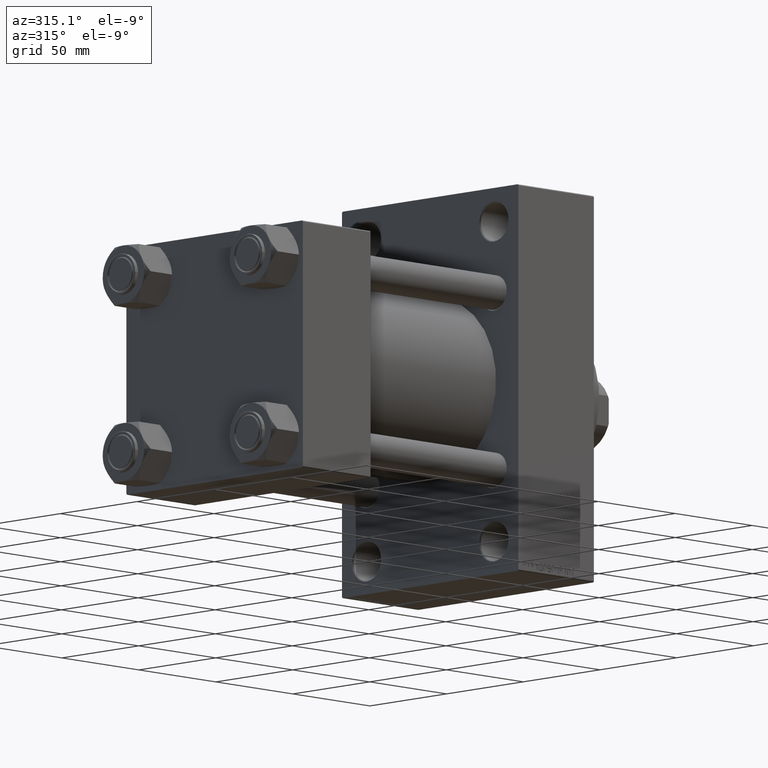
[diagram: clean part render]
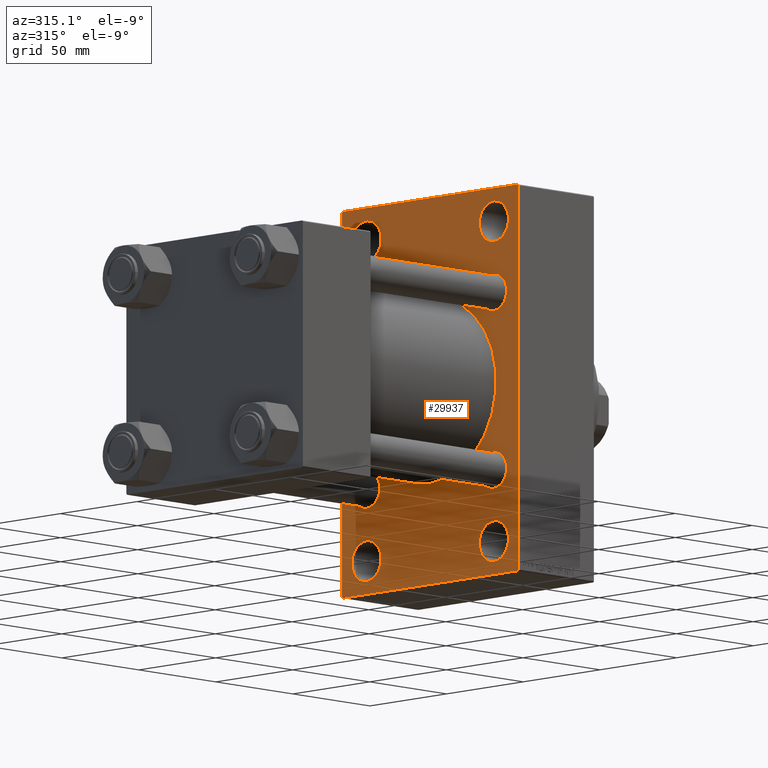
[diagram: same view with one face highlighted and labeled with its STEP entity id]
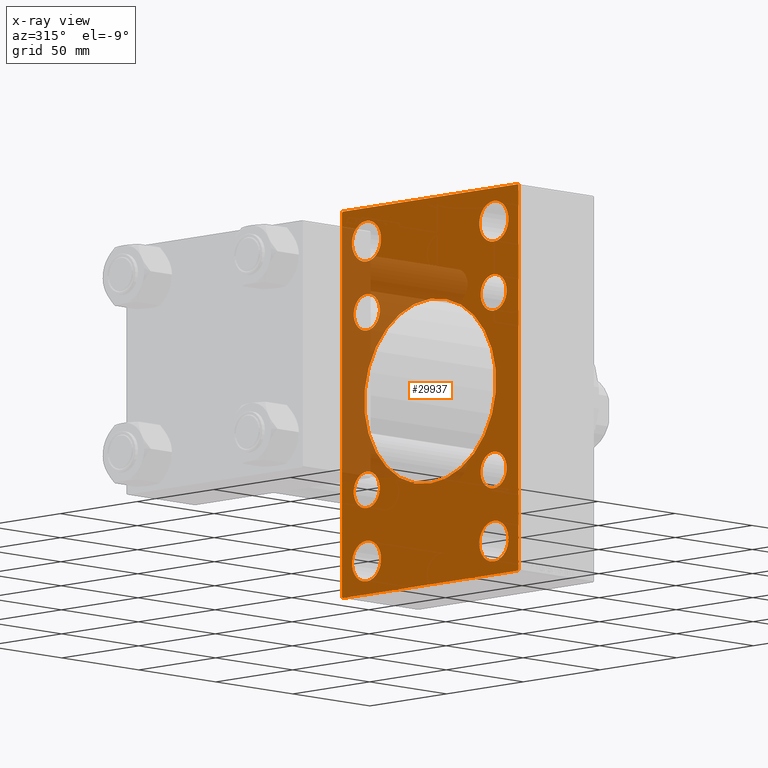
[diagram: x-ray of the same camera — body ghosted, the highlighted face saturated]
A machine part, auxiliary view. The second image highlights one B-rep face of the part: STEP entity #29937.
The next image is the same camera in x-ray: the body ghosted, the highlighted face saturated — about 25% of this face is hidden behind the body in this view.
In plain terms, the highlighted planar face has unit normal (-1, 0, 0).
Its self-contained STEP definition (entity closure, byte-faithful):
#295 = CARTESIAN_POINT ( 'NONE',  ( 140.0000000000000000, -57.50000000000002132, 89.99999999999997158 ) ) ;
#367 = VERTEX_POINT ( 'NONE', #15809 ) ;
#446 = EDGE_CURVE ( 'NONE', #47212, #9897, #1103, .T. ) ;
#526 = DIRECTION ( 'NONE',  ( 0.000000000000000000, 0.000000000000000000, -1.000000000000000000 ) ) ;
#666 = CARTESIAN_POINT ( 'NONE',  ( 140.0000000000000000, -41.34999999999998721, 49.85000000000002274 ) ) ;
#994 = EDGE_CURVE ( 'NONE', #26643, #29517, #28183, .T. ) ;
#1044 = VERTEX_POINT ( 'NONE', #20958 ) ;
#1102 = CIRCLE ( 'NONE', #6556, 8.500000000000007105 ) ;
#1103 = CIRCLE ( 'NONE', #21106, 8.500000000000007105 ) ;
#1232 = ORIENTED_EDGE ( 'NONE', *, *, #23214, .T. ) ;
#1238 = DIRECTION ( 'NONE',  ( 1.000000000000000000, -0.000000000000000000, 0.000000000000000000 ) ) ;
#1296 = CARTESIAN_POINT ( 'NONE',  ( 140.0000000000000000, -57.00000000000002132, -90.00000000000001421 ) ) ;
#1495 = DIRECTION ( 'NONE',  ( 0.000000000000000000, 0.000000000000000000, 1.000000000000000000 ) ) ;
#1554 = AXIS2_PLACEMENT_3D ( 'NONE', #30412, #1238, #33575 ) ;
#1703 = CARTESIAN_POINT ( 'NONE',  ( 140.0000000000000000, -41.49999999999999289, 83.99999999999998579 ) ) ;
#1738 = LINE ( 'NONE', #5598, #34430 ) ;
#1748 = EDGE_CURVE ( 'NONE', #35337, #26643, #9856, .T. ) ;
#2211 = DIRECTION ( 'NONE',  ( 1.000000000000000000, -0.000000000000000000, 0.000000000000000000 ) ) ;
#2224 = EDGE_CURVE ( 'NONE', #47094, #38456, #37438, .T. ) ;
#2305 = CIRCLE ( 'NONE', #28401, 9.499999999999980460 ) ;
#2663 = VERTEX_POINT ( 'NONE', #1703 ) ;
#2707 = FACE_BOUND ( 'NONE', #32682, .T. ) ;
#2782 = CARTESIAN_POINT ( 'NONE',  ( 140.0000000000000000, -41.49999999999999289, -65.00000000000000000 ) ) ;
#2884 = EDGE_CURVE ( 'NONE', #17526, #3713, #4602, .T. ) ;
#2942 = FACE_BOUND ( 'NONE', #33254, .T. ) ;
#3149 = ORIENTED_EDGE ( 'NONE', *, *, #35182, .F. ) ;
#3425 = CIRCLE ( 'NONE', #29563, 43.00000000000000000 ) ;
#3668 = VERTEX_POINT ( 'NONE', #25763 ) ;
#3713 = VERTEX_POINT ( 'NONE', #666 ) ;
#3861 = DIRECTION ( 'NONE',  ( 1.000000000000000000, -0.000000000000000000, 0.000000000000000000 ) ) ;
#4131 = ORIENTED_EDGE ( 'NONE', *, *, #16532, .T. ) ;
#4135 = CIRCLE ( 'NONE', #10315, 9.499999999999980460 ) ;
#4197 = VECTOR ( 'NONE', #20939, 1000.000000000000114 ) ;
#4278 = EDGE_CURVE ( 'NONE', #14681, #1044, #2305, .T. ) ;
#4422 = DIRECTION ( 'NONE',  ( 1.000000000000000000, -0.000000000000000000, 0.000000000000000000 ) ) ;
#4602 = CIRCLE ( 'NONE', #22280, 8.500000000000007105 ) ;
#5598 = CARTESIAN_POINT ( 'NONE',  ( 140.0000000000000000, 57.49999999999997158, 89.99999999999998579 ) ) ;
#5987 = EDGE_LOOP ( 'NONE', ( #35981, #34649 ) ) ;
#6182 = CARTESIAN_POINT ( 'NONE',  ( 140.0000000000000000, -2.602085213965210642E-15, 0.000000000000000000 ) ) ;
#6556 = AXIS2_PLACEMENT_3D ( 'NONE', #42701, #2211, #1495 ) ;
#6566 = FACE_BOUND ( 'NONE', #22592, .T. ) ;
#7288 = EDGE_LOOP ( 'NONE', ( #23157, #8102 ) ) ;
#7311 = DIRECTION ( 'NONE',  ( 0.000000000000000000, 0.000000000000000000, 1.000000000000000000 ) ) ;
#7489 = DIRECTION ( 'NONE',  ( 0.000000000000000000, 0.000000000000000000, 1.000000000000000000 ) ) ;
#7548 = LINE ( 'NONE', #295, #15997 ) ;
#7636 = ORIENTED_EDGE ( 'NONE', *, *, #21712, .T. ) ;
#7763 = VERTEX_POINT ( 'NONE', #37242 ) ;
#8076 = CARTESIAN_POINT ( 'NONE',  ( 140.0000000000000000, 41.50000000000000711, 74.50000000000001421 ) ) ;
#8102 = ORIENTED_EDGE ( 'NONE', *, *, #2884, .T. ) ;
#8253 = LINE ( 'NONE', #22934, #29496 ) ;
#8388 = ORIENTED_EDGE ( 'NONE', *, *, #30759, .T. ) ;
#8527 = CARTESIAN_POINT ( 'NONE',  ( 140.0000000000000000, 41.50000000000000711, -65.00000000000001421 ) ) ;
#8886 = CARTESIAN_POINT ( 'NONE',  ( 140.0000000000000000, -41.34999999999998721, 41.35000000000000853 ) ) ;
#9525 = AXIS2_PLACEMENT_3D ( 'NONE', #15126, #11266, #15363 ) ;
#9856 = LINE ( 'NONE', #31790, #4197 ) ;
#9897 = VERTEX_POINT ( 'NONE', #16425 ) ;
#10019 = DIRECTION ( 'NONE',  ( 0.000000000000000000, 0.000000000000000000, 1.000000000000000000 ) ) ;
#10315 = AXIS2_PLACEMENT_3D ( 'NONE', #8076, #44688, #18684 ) ;
#10386 = DIRECTION ( 'NONE',  ( 0.000000000000000000, 0.000000000000000000, 1.000000000000000000 ) ) ;
#10423 = CARTESIAN_POINT ( 'NONE',  ( 140.0000000000000000, 0.000000000000000000, 0.000000000000000000 ) ) ;
#10588 = AXIS2_PLACEMENT_3D ( 'NONE', #34525, #20054, #41988 ) ;
#10672 = ORIENTED_EDGE ( 'NONE', *, *, #43634, .T. ) ;
#11139 = DIRECTION ( 'NONE',  ( -0.000000000000000000, 0.000000000000000000, 1.000000000000000000 ) ) ;
#11266 = DIRECTION ( 'NONE',  ( 1.000000000000000000, -0.000000000000000000, 0.000000000000000000 ) ) ;
#11510 = LINE ( 'NONE', #26185, #28808 ) ;
#11752 = DIRECTION ( 'NONE',  ( -0.000000000000000000, 0.7071067811865524577, 0.7071067811865426878 ) ) ;
#11769 = VERTEX_POINT ( 'NONE', #35130 ) ;
#11919 = EDGE_CURVE ( 'NONE', #15876, #44143, #42475, .T. ) ;
#12402 = CARTESIAN_POINT ( 'NONE',  ( 140.0000000000000000, -41.34999999999998721, 41.35000000000000853 ) ) ;
#12470 = DIRECTION ( 'NONE',  ( 1.000000000000000000, 0.000000000000000000, 0.000000000000000000 ) ) ;
#12608 = CARTESIAN_POINT ( 'NONE',  ( 140.0000000000000000, -41.34999999999998721, -49.85000000000002274 ) ) ;
#12628 = CIRCLE ( 'NONE', #44160, 8.500000000000007105 ) ;
#13061 = AXIS2_PLACEMENT_3D ( 'NONE', #34087, #4422, #33846 ) ;
#13138 = CARTESIAN_POINT ( 'NONE',  ( 140.0000000000000000, 41.34999999999999432, 41.35000000000000142 ) ) ;
#13278 = VECTOR ( 'NONE', #18037, 1000.000000000000000 ) ;
#13817 = DIRECTION ( 'NONE',  ( 1.000000000000000000, -0.000000000000000000, 0.000000000000000000 ) ) ;
#13903 = CARTESIAN_POINT ( 'NONE',  ( 140.0000000000000000, -41.49999999999999289, -74.49999999999998579 ) ) ;
#14312 = CARTESIAN_POINT ( 'NONE',  ( 140.0000000000000000, 41.34999999999999432, -41.35000000000000142 ) ) ;
#14681 = VERTEX_POINT ( 'NONE', #8527 ) ;
#14903 = CARTESIAN_POINT ( 'NONE',  ( 140.0000000000000000, 57.49999999999997868, -90.00000000000000000 ) ) ;
#14966 = ORIENTED_EDGE ( 'NONE', *, *, #35237, .T. ) ;
#15126 = CARTESIAN_POINT ( 'NONE',  ( 140.0000000000000000, 41.50000000000000711, -74.50000000000000000 ) ) ;
#15363 = DIRECTION ( 'NONE',  ( 0.000000000000000000, 0.000000000000000000, 1.000000000000000000 ) ) ;
#15435 = VERTEX_POINT ( 'NONE', #12608 ) ;
#15730 = EDGE_CURVE ( 'NONE', #1044, #14681, #26427, .T. ) ;
#15809 = CARTESIAN_POINT ( 'NONE',  ( 140.0000000000000000, 2.663896022368408223E-15, -43.00000000000000000 ) ) ;
#15876 = VERTEX_POINT ( 'NONE', #2782 ) ;
#15965 = AXIS2_PLACEMENT_3D ( 'NONE', #29450, #13817, #21261 ) ;
#15997 = VECTOR ( 'NONE', #526, 1000.000000000000000 ) ;
#16425 = CARTESIAN_POINT ( 'NONE',  ( 140.0000000000000000, 41.34999999999999432, 32.84999999999999432 ) ) ;
#16532 = EDGE_CURVE ( 'NONE', #11769, #2663, #37213, .T. ) ;
#16794 = AXIS2_PLACEMENT_3D ( 'NONE', #28254, #35038, #23924 ) ;
#16997 = DIRECTION ( 'NONE',  ( 1.000000000000000000, -0.000000000000000000, 0.000000000000000000 ) ) ;
#17071 = DIRECTION ( 'NONE',  ( 1.000000000000000000, -0.000000000000000000, 0.000000000000000000 ) ) ;
#17148 = ORIENTED_EDGE ( 'NONE', *, *, #19550, .T. ) ;
#17217 = EDGE_CURVE ( 'NONE', #42957, #20219, #12628, .T. ) ;
#17507 = CIRCLE ( 'NONE', #15965, 9.499999999999980460 ) ;
#17526 = VERTEX_POINT ( 'NONE', #27445 ) ;
#17654 = FACE_BOUND ( 'NONE', #42423, .T. ) ;
#18037 = DIRECTION ( 'NONE',  ( 0.000000000000000000, -1.000000000000000000, -1.206764157201257045E-16 ) ) ;
#18684 = DIRECTION ( 'NONE',  ( 0.000000000000000000, 0.000000000000000000, 1.000000000000000000 ) ) ;
#19223 = CARTESIAN_POINT ( 'NONE',  ( 140.0000000000000000, 41.34999999999999432, -49.85000000000001563 ) ) ;
#19550 = EDGE_CURVE ( 'NONE', #29517, #42336, #8253, .T. ) ;
#19869 = CARTESIAN_POINT ( 'NONE',  ( 140.0000000000000000, 41.34999999999999432, 49.85000000000001563 ) ) ;
#20024 = CARTESIAN_POINT ( 'NONE',  ( 140.0000000000000000, -41.49999999999999289, -83.99999999999995737 ) ) ;
#20039 = CIRCLE ( 'NONE', #44653, 8.500000000000007105 ) ;
#20054 = DIRECTION ( 'NONE',  ( 1.000000000000000000, 0.000000000000000000, 0.000000000000000000 ) ) ;
#20219 = VERTEX_POINT ( 'NONE', #23778 ) ;
#20252 = CARTESIAN_POINT ( 'NONE',  ( 140.0000000000000000, 57.49999999999997158, 89.99999999999998579 ) ) ;
#20440 = EDGE_CURVE ( 'NONE', #37001, #44442, #4135, .T. ) ;
#20687 = CARTESIAN_POINT ( 'NONE',  ( 140.0000000000000000, 57.49999999999997158, 89.50000000000004263 ) ) ;
#20872 = EDGE_LOOP ( 'NONE', ( #24386, #26526, #3149, #7636, #23395, #34502, #33054, #17148 ) ) ;
#20939 = DIRECTION ( 'NONE',  ( 0.000000000000000000, 0.7071067811865474617, -0.7071067811865474617 ) ) ;
#20958 = CARTESIAN_POINT ( 'NONE',  ( 140.0000000000000000, 41.50000000000000711, -83.99999999999997158 ) ) ;
#21024 = FACE_BOUND ( 'NONE', #25377, .T. ) ;
#21106 = AXIS2_PLACEMENT_3D ( 'NONE', #13138, #16997, #31680 ) ;
#21254 = FACE_BOUND ( 'NONE', #5987, .T. ) ;
#21261 = DIRECTION ( 'NONE',  ( 0.000000000000000000, 0.000000000000000000, 1.000000000000000000 ) ) ;
#21370 = ORIENTED_EDGE ( 'NONE', *, *, #21772, .T. ) ;
#21445 = VECTOR ( 'NONE', #27052, 1000.000000000000000 ) ;
#21700 = AXIS2_PLACEMENT_3D ( 'NONE', #13903, #25907, #32699 ) ;
#21712 = EDGE_CURVE ( 'NONE', #3668, #7763, #11510, .T. ) ;
#21772 = EDGE_CURVE ( 'NONE', #22805, #367, #3425, .T. ) ;
#22280 = AXIS2_PLACEMENT_3D ( 'NONE', #8886, #17071, #28130 ) ;
#22592 = EDGE_LOOP ( 'NONE', ( #44216, #27116 ) ) ;
#22805 = VERTEX_POINT ( 'NONE', #39685 ) ;
#22934 = CARTESIAN_POINT ( 'NONE',  ( 140.0000000000000000, 73.49999999999759837, -73.50000000000372324 ) ) ;
#23155 = CIRCLE ( 'NONE', #38588, 8.500000000000007105 ) ;
#23157 = ORIENTED_EDGE ( 'NONE', *, *, #46363, .T. ) ;
#23214 = EDGE_CURVE ( 'NONE', #47516, #15435, #1102, .T. ) ;
#23395 = ORIENTED_EDGE ( 'NONE', *, *, #28386, .F. ) ;
#23778 = CARTESIAN_POINT ( 'NONE',  ( 140.0000000000000000, 41.34999999999999432, -32.84999999999999432 ) ) ;
#23898 = DIRECTION ( 'NONE',  ( 0.000000000000000000, -1.000000000000000000, -1.206764157201257291E-16 ) ) ;
#23924 = DIRECTION ( 'NONE',  ( 0.000000000000000000, 0.000000000000000000, 1.000000000000000000 ) ) ;
#24386 = ORIENTED_EDGE ( 'NONE', *, *, #46723, .T. ) ;
#24861 = FACE_BOUND ( 'NONE', #40420, .T. ) ;
#25096 = DIRECTION ( 'NONE',  ( -1.000000000000000000, 0.000000000000000000, -0.000000000000000000 ) ) ;
#25377 = EDGE_LOOP ( 'NONE', ( #26930, #4131 ) ) ;
#25763 = CARTESIAN_POINT ( 'NONE',  ( 140.0000000000000000, -57.50000000000002132, 89.50000000000002842 ) ) ;
#25907 = DIRECTION ( 'NONE',  ( 1.000000000000000000, -0.000000000000000000, 0.000000000000000000 ) ) ;
#26185 = CARTESIAN_POINT ( 'NONE',  ( 140.0000000000000000, -73.49999999999960210, 73.50000000000062528 ) ) ;
#26427 = CIRCLE ( 'NONE', #9525, 9.499999999999980460 ) ;
#26526 = ORIENTED_EDGE ( 'NONE', *, *, #2224, .T. ) ;
#26643 = VERTEX_POINT ( 'NONE', #20687 ) ;
#26866 = CARTESIAN_POINT ( 'NONE',  ( 140.0000000000000000, -41.34999999999998721, -41.35000000000000853 ) ) ;
#26930 = ORIENTED_EDGE ( 'NONE', *, *, #41301, .T. ) ;
#27052 = DIRECTION ( 'NONE',  ( 0.000000000000000000, -0.7071067811865573427, 0.7071067811865378028 ) ) ;
#27116 = ORIENTED_EDGE ( 'NONE', *, *, #41675, .T. ) ;
#27186 = AXIS2_PLACEMENT_3D ( 'NONE', #35469, #36421, #10386 ) ;
#27445 = CARTESIAN_POINT ( 'NONE',  ( 140.0000000000000000, -41.34999999999998721, 32.85000000000000142 ) ) ;
#27642 = AXIS2_PLACEMENT_3D ( 'NONE', #10423, #25096, #11139 ) ;
#27720 = ORIENTED_EDGE ( 'NONE', *, *, #20440, .T. ) ;
#28130 = DIRECTION ( 'NONE',  ( 0.000000000000000000, 0.000000000000000000, 1.000000000000000000 ) ) ;
#28183 = LINE ( 'NONE', #20252, #32718 ) ;
#28254 = CARTESIAN_POINT ( 'NONE',  ( 140.0000000000000000, 41.50000000000000711, 74.50000000000001421 ) ) ;
#28274 = DIRECTION ( 'NONE',  ( 1.000000000000000000, -0.000000000000000000, 0.000000000000000000 ) ) ;
#28386 = EDGE_CURVE ( 'NONE', #35337, #7763, #1738, .T. ) ;
#28401 = AXIS2_PLACEMENT_3D ( 'NONE', #31946, #43020, #10019 ) ;
#28808 = VECTOR ( 'NONE', #11752, 1000.000000000000000 ) ;
#29412 = CARTESIAN_POINT ( 'NONE',  ( 140.0000000000000000, 41.34999999999999432, 41.35000000000000142 ) ) ;
#29450 = CARTESIAN_POINT ( 'NONE',  ( 140.0000000000000000, -41.49999999999999289, -74.49999999999998579 ) ) ;
#29496 = VECTOR ( 'NONE', #45100, 999.9999999999998863 ) ;
#29517 = VERTEX_POINT ( 'NONE', #40362 ) ;
#29563 = AXIS2_PLACEMENT_3D ( 'NONE', #6182, #12470, #31246 ) ;
#29937 = ADVANCED_FACE ( 'NONE', ( #21024, #2942, #2707, #24861, #39587, #6566, #21254, #35974, #17654, #47029 ), #43422, .T. ) ;
#30330 = CARTESIAN_POINT ( 'NONE',  ( 140.0000000000000000, 41.50000000000000711, 83.99999999999998579 ) ) ;
#30412 = CARTESIAN_POINT ( 'NONE',  ( 140.0000000000000000, -41.49999999999999289, 74.50000000000001421 ) ) ;
#30759 = EDGE_CURVE ( 'NONE', #44143, #15876, #17507, .T. ) ;
#31246 = DIRECTION ( 'NONE',  ( 0.000000000000000000, 0.000000000000000000, -1.000000000000000000 ) ) ;
#31641 = ORIENTED_EDGE ( 'NONE', *, *, #4278, .T. ) ;
#31680 = DIRECTION ( 'NONE',  ( 0.000000000000000000, 0.000000000000000000, 1.000000000000000000 ) ) ;
#31790 = CARTESIAN_POINT ( 'NONE',  ( 140.0000000000000000, 73.50000000000000000, 73.50000000000000000 ) ) ;
#31946 = CARTESIAN_POINT ( 'NONE',  ( 140.0000000000000000, 41.50000000000000711, -74.50000000000000000 ) ) ;
#32682 = EDGE_LOOP ( 'NONE', ( #31641, #36317 ) ) ;
#32699 = DIRECTION ( 'NONE',  ( 0.000000000000000000, 0.000000000000000000, 1.000000000000000000 ) ) ;
#32718 = VECTOR ( 'NONE', #35440, 1000.000000000000000 ) ;
#32808 = EDGE_CURVE ( 'NONE', #44442, #37001, #37554, .T. ) ;
#33054 = ORIENTED_EDGE ( 'NONE', *, *, #994, .T. ) ;
#33127 = CIRCLE ( 'NONE', #1554, 9.499999999999980460 ) ;
#33254 = EDGE_LOOP ( 'NONE', ( #42041, #8388 ) ) ;
#33575 = DIRECTION ( 'NONE',  ( 0.000000000000000000, 0.000000000000000000, 1.000000000000000000 ) ) ;
#33846 = DIRECTION ( 'NONE',  ( 0.000000000000000000, 0.000000000000000000, 1.000000000000000000 ) ) ;
#33939 = CIRCLE ( 'NONE', #41637, 8.500000000000007105 ) ;
#34087 = CARTESIAN_POINT ( 'NONE',  ( 140.0000000000000000, 41.34999999999999432, -41.35000000000000142 ) ) ;
#34430 = VECTOR ( 'NONE', #23898, 1000.000000000000000 ) ;
#34502 = ORIENTED_EDGE ( 'NONE', *, *, #1748, .T. ) ;
#34525 = CARTESIAN_POINT ( 'NONE',  ( 140.0000000000000000, -2.602085213965210642E-15, 0.000000000000000000 ) ) ;
#34649 = ORIENTED_EDGE ( 'NONE', *, *, #17217, .T. ) ;
#35038 = DIRECTION ( 'NONE',  ( 1.000000000000000000, -0.000000000000000000, 0.000000000000000000 ) ) ;
#35130 = CARTESIAN_POINT ( 'NONE',  ( 140.0000000000000000, -41.49999999999999289, 65.00000000000002842 ) ) ;
#35182 = EDGE_CURVE ( 'NONE', #3668, #38456, #7548, .T. ) ;
#35237 = EDGE_CURVE ( 'NONE', #367, #22805, #42913, .T. ) ;
#35337 = VERTEX_POINT ( 'NONE', #39796 ) ;
#35440 = DIRECTION ( 'NONE',  ( 0.000000000000000000, 3.854941057726238467E-17, -1.000000000000000000 ) ) ;
#35469 = CARTESIAN_POINT ( 'NONE',  ( 140.0000000000000000, -41.49999999999999289, 74.50000000000001421 ) ) ;
#35974 = FACE_BOUND ( 'NONE', #37912, .T. ) ;
#35981 = ORIENTED_EDGE ( 'NONE', *, *, #40177, .T. ) ;
#36317 = ORIENTED_EDGE ( 'NONE', *, *, #15730, .T. ) ;
#36421 = DIRECTION ( 'NONE',  ( 1.000000000000000000, -0.000000000000000000, 0.000000000000000000 ) ) ;
#37001 = VERTEX_POINT ( 'NONE', #44705 ) ;
#37213 = CIRCLE ( 'NONE', #27186, 9.499999999999980460 ) ;
#37242 = CARTESIAN_POINT ( 'NONE',  ( 140.0000000000000000, -57.00000000000007105, 89.99999999999997158 ) ) ;
#37438 = LINE ( 'NONE', #38159, #21445 ) ;
#37554 = CIRCLE ( 'NONE', #16794, 9.499999999999980460 ) ;
#37655 = CARTESIAN_POINT ( 'NONE',  ( 140.0000000000000000, -41.34999999999998721, -32.85000000000000142 ) ) ;
#37912 = EDGE_LOOP ( 'NONE', ( #1232, #10672 ) ) ;
#38159 = CARTESIAN_POINT ( 'NONE',  ( 140.0000000000000000, -73.49999999999923261, -73.50000000000127898 ) ) ;
#38391 = CARTESIAN_POINT ( 'NONE',  ( 140.0000000000000000, -57.50000000000002132, -89.49999999999997158 ) ) ;
#38421 = DIRECTION ( 'NONE',  ( 1.000000000000000000, -0.000000000000000000, 0.000000000000000000 ) ) ;
#38456 = VERTEX_POINT ( 'NONE', #38391 ) ;
#38458 = DIRECTION ( 'NONE',  ( 0.000000000000000000, 0.000000000000000000, 1.000000000000000000 ) ) ;
#38588 = AXIS2_PLACEMENT_3D ( 'NONE', #26866, #38697, #38458 ) ;
#38697 = DIRECTION ( 'NONE',  ( 1.000000000000000000, -0.000000000000000000, 0.000000000000000000 ) ) ;
#39587 = FACE_BOUND ( 'NONE', #7288, .T. ) ;
#39685 = CARTESIAN_POINT ( 'NONE',  ( 140.0000000000000000, -2.602085213965210642E-15, 43.00000000000000000 ) ) ;
#39796 = CARTESIAN_POINT ( 'NONE',  ( 140.0000000000000000, 57.00000000000002842, 89.99999999999998579 ) ) ;
#39803 = ORIENTED_EDGE ( 'NONE', *, *, #32808, .T. ) ;
#40177 = EDGE_CURVE ( 'NONE', #20219, #42957, #43076, .T. ) ;
#40362 = CARTESIAN_POINT ( 'NONE',  ( 140.0000000000000000, 57.49999999999997868, -89.49999999999995737 ) ) ;
#40420 = EDGE_LOOP ( 'NONE', ( #39803, #27720 ) ) ;
#40866 = CARTESIAN_POINT ( 'NONE',  ( 140.0000000000000000, 56.99999999999995026, -90.00000000000000000 ) ) ;
#41301 = EDGE_CURVE ( 'NONE', #2663, #11769, #33127, .T. ) ;
#41637 = AXIS2_PLACEMENT_3D ( 'NONE', #12402, #38421, #42264 ) ;
#41675 = EDGE_CURVE ( 'NONE', #9897, #47212, #20039, .T. ) ;
#41988 = DIRECTION ( 'NONE',  ( 0.000000000000000000, 0.000000000000000000, -1.000000000000000000 ) ) ;
#42041 = ORIENTED_EDGE ( 'NONE', *, *, #11919, .T. ) ;
#42264 = DIRECTION ( 'NONE',  ( 0.000000000000000000, 0.000000000000000000, 1.000000000000000000 ) ) ;
#42336 = VERTEX_POINT ( 'NONE', #40866 ) ;
#42423 = EDGE_LOOP ( 'NONE', ( #21370, #14966 ) ) ;
#42475 = CIRCLE ( 'NONE', #21700, 9.499999999999980460 ) ;
#42701 = CARTESIAN_POINT ( 'NONE',  ( 140.0000000000000000, -41.34999999999998721, -41.35000000000000853 ) ) ;
#42913 = CIRCLE ( 'NONE', #10588, 43.00000000000000000 ) ;
#42957 = VERTEX_POINT ( 'NONE', #19223 ) ;
#43020 = DIRECTION ( 'NONE',  ( 1.000000000000000000, -0.000000000000000000, 0.000000000000000000 ) ) ;
#43076 = CIRCLE ( 'NONE', #13061, 8.500000000000007105 ) ;
#43422 = PLANE ( 'NONE',  #27642 ) ;
#43564 = LINE ( 'NONE', #14903, #13278 ) ;
#43634 = EDGE_CURVE ( 'NONE', #15435, #47516, #23155, .T. ) ;
#44143 = VERTEX_POINT ( 'NONE', #20024 ) ;
#44160 = AXIS2_PLACEMENT_3D ( 'NONE', #14312, #28274, #7311 ) ;
#44216 = ORIENTED_EDGE ( 'NONE', *, *, #446, .T. ) ;
#44442 = VERTEX_POINT ( 'NONE', #30330 ) ;
#44653 = AXIS2_PLACEMENT_3D ( 'NONE', #29412, #3861, #7489 ) ;
#44688 = DIRECTION ( 'NONE',  ( 1.000000000000000000, -0.000000000000000000, 0.000000000000000000 ) ) ;
#44705 = CARTESIAN_POINT ( 'NONE',  ( 140.0000000000000000, 41.50000000000000711, 65.00000000000002842 ) ) ;
#45100 = DIRECTION ( 'NONE',  ( -0.000000000000000000, -0.7071067811865771047, -0.7071067811865180408 ) ) ;
#46363 = EDGE_CURVE ( 'NONE', #3713, #17526, #33939, .T. ) ;
#46723 = EDGE_CURVE ( 'NONE', #42336, #47094, #43564, .T. ) ;
#47029 = FACE_OUTER_BOUND ( 'NONE', #20872, .T. ) ;
#47094 = VERTEX_POINT ( 'NONE', #1296 ) ;
#47212 = VERTEX_POINT ( 'NONE', #19869 ) ;
#47516 = VERTEX_POINT ( 'NONE', #37655 ) ;